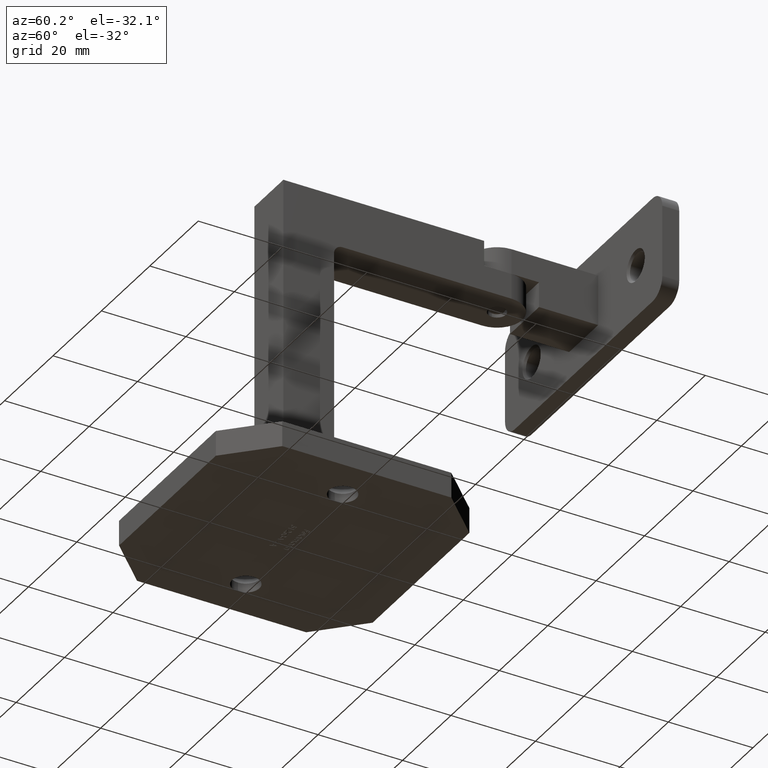
[diagram: clean part render]
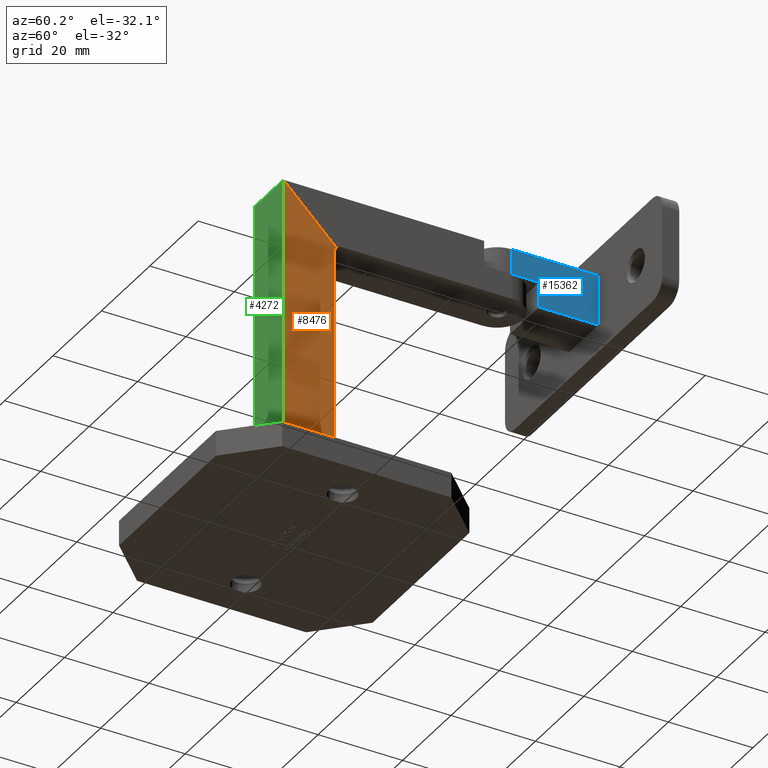
[diagram: same view with three faces highlighted in distinct colors, each labeled with its STEP entity id]
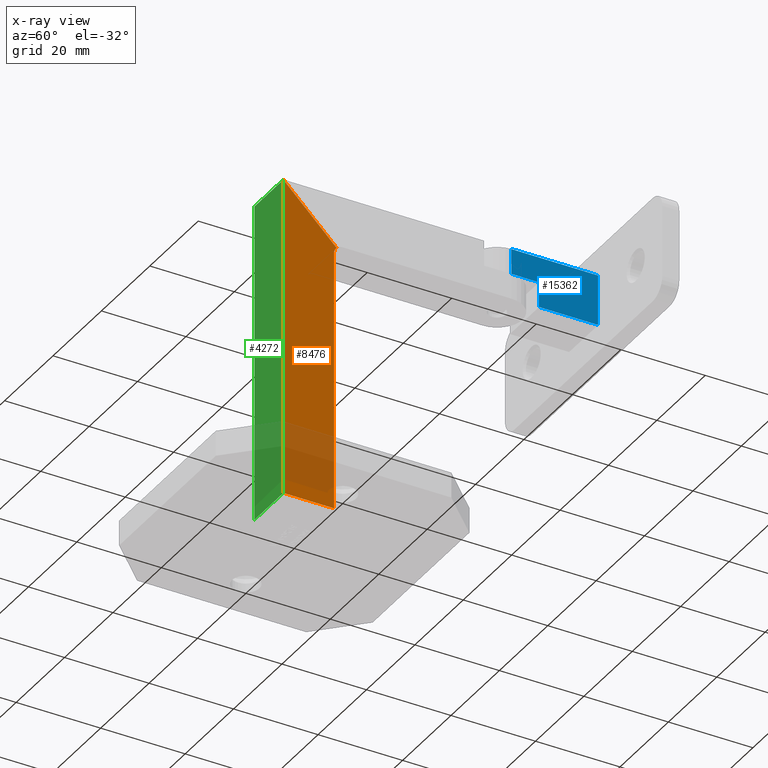
[diagram: x-ray of the same camera — body ghosted, the three highlighted faces saturated]
A machine part, auxiliary view with three faces highlighted in distinct colors.
The next image is the same camera in x-ray (body ghosted, the three faces saturated) — at least one of them is partly hidden behind the body in this view.
Their STEP definitions:

[orange] entity #8476 — the highlighted planar face has unit normal (1, -0, -0).
#1257 = VERTEX_POINT ( 'NONE', #10997 ) ;
#1710 = ORIENTED_EDGE ( 'NONE', *, *, #15108, .F. ) ;
#2434 = DIRECTION ( 'NONE',  ( -0.000000000000000000, 1.224646799147353207E-16, -1.000000000000000000 ) ) ;
#3550 = ORIENTED_EDGE ( 'NONE', *, *, #5045, .T. ) ;
#3824 = CARTESIAN_POINT ( 'NONE',  ( 6.000000000000002665, 6.585786437626897083, 66.41421356237307805 ) ) ;
#4599 = VECTOR ( 'NONE', #2434, 1000.000000000000000 ) ;
#5045 = EDGE_CURVE ( 'NONE', #5939, #23233, #12005, .T. ) ;
#5328 = PLANE ( 'NONE',  #16536 ) ;
#5518 = CARTESIAN_POINT ( 'NONE',  ( 6.000000000000002665, 7.999999999999992895, 64.99999999999997158 ) ) ;
#5748 = VECTOR ( 'NONE', #21355, 1000.000000000000000 ) ;
#5928 = CARTESIAN_POINT ( 'NONE',  ( 6.000000000000002665, 5.999999999999988454, 89.97056274847714974 ) ) ;
#5939 = VERTEX_POINT ( 'NONE', #11869 ) ;
#6292 = DIRECTION ( 'NONE',  ( -1.022195611122249425E-16, -0.7071067811865475727, 0.7071067811865474617 ) ) ;
#7299 = EDGE_LOOP ( 'NONE', ( #3550, #20606, #1710, #18163, #17530 ) ) ;
#7572 = DIRECTION ( 'NONE',  ( 1.445602896647339410E-16, 1.000000000000000000, -0.000000000000000000 ) ) ;
#8476 = ADVANCED_FACE ( 'NONE', ( #9900 ), #5328, .T. ) ;
#8501 = EDGE_CURVE ( 'NONE', #23233, #1257, #17269, .T. ) ;
#8607 = VERTEX_POINT ( 'NONE', #3824 ) ;
#9121 = DIRECTION ( 'NONE',  ( -1.000000000000000000, 1.445602896647339410E-16, 1.770352960217306030E-32 ) ) ;
#9860 = CARTESIAN_POINT ( 'NONE',  ( 6.000000000000002665, 5.999999999999992006, 64.99999999999997158 ) ) ;
#9900 = FACE_OUTER_BOUND ( 'NONE', #7299, .T. ) ;
#10786 = DIRECTION ( 'NONE',  ( 0.000000000000000000, 1.000000000000000000, -1.387778780781445676E-14 ) ) ;
#10947 = CARTESIAN_POINT ( 'NONE',  ( 6.000000000000000888, -6.000000000000000888, 3.070000000000003393 ) ) ;
#10997 = CARTESIAN_POINT ( 'NONE',  ( 6.000000000000002665, 5.999999999999999112, 3.070000000000003393 ) ) ;
#11869 = CARTESIAN_POINT ( 'NONE',  ( 6.000000000000000888, -6.000000000000009770, 78.99999999999998579 ) ) ;
#12005 = LINE ( 'NONE', #23301, #5748 ) ;
#12656 = CIRCLE ( 'NONE', #20019, 2.000000000000000000 ) ;
#14474 = DIRECTION ( 'NONE',  ( 1.445602896647339410E-16, 1.000000000000000000, 0.000000000000000000 ) ) ;
#14721 = CARTESIAN_POINT ( 'NONE',  ( 6.000000000000002665, 6.000000000000000000, 3.070000000000000284 ) ) ;
#15027 = LINE ( 'NONE', #15297, #18747 ) ;
#15108 = EDGE_CURVE ( 'NONE', #19631, #1257, #23461, .T. ) ;
#15297 = CARTESIAN_POINT ( 'NONE',  ( 6.000000000000000888, -5.485281374238592633, 78.48528137423856776 ) ) ;
#16155 = DIRECTION ( 'NONE',  ( 1.000000000000000000, -1.445602896647339410E-16, -1.770352960217306030E-32 ) ) ;
#16536 = AXIS2_PLACEMENT_3D ( 'NONE', #18082, #16155, #14474 ) ;
#17269 = LINE ( 'NONE', #14721, #21535 ) ;
#17530 = ORIENTED_EDGE ( 'NONE', *, *, #19178, .T. ) ;
#18082 = CARTESIAN_POINT ( 'NONE',  ( 6.000000000000002665, 5.999999999999988454, 89.97056274847714974 ) ) ;
#18163 = ORIENTED_EDGE ( 'NONE', *, *, #23147, .T. ) ;
#18747 = VECTOR ( 'NONE', #6292, 1000.000000000000000 ) ;
#19178 = EDGE_CURVE ( 'NONE', #8607, #5939, #15027, .T. ) ;
#19631 = VERTEX_POINT ( 'NONE', #9860 ) ;
#20019 = AXIS2_PLACEMENT_3D ( 'NONE', #5518, #9121, #10786 ) ;
#20606 = ORIENTED_EDGE ( 'NONE', *, *, #8501, .T. ) ;
#21355 = DIRECTION ( 'NONE',  ( -0.000000000000000000, 1.224646799147353207E-16, -1.000000000000000000 ) ) ;
#21535 = VECTOR ( 'NONE', #7572, 1000.000000000000000 ) ;
#23147 = EDGE_CURVE ( 'NONE', #19631, #8607, #12656, .T. ) ;
#23233 = VERTEX_POINT ( 'NONE', #10947 ) ;
#23301 = CARTESIAN_POINT ( 'NONE',  ( 6.000000000000000888, -6.000000000000011546, 89.97056274847714974 ) ) ;
#23461 = LINE ( 'NONE', #5928, #4599 ) ;

[blue] entity #15362 — the highlighted planar face has unit normal (-1, -0, 0).
#587 = VERTEX_POINT ( 'NONE', #23110 ) ;
#668 = DIRECTION ( 'NONE',  ( -1.636531581110195409E-16, 1.000000000000000000, -0.000000000000000000 ) ) ;
#948 = CARTESIAN_POINT ( 'NONE',  ( 6.000000000000000888, -7.249999999999999112, 6.000000000000000000 ) ) ;
#959 = ORIENTED_EDGE ( 'NONE', *, *, #14714, .F. ) ;
#1143 = DIRECTION ( 'NONE',  ( 1.636531581110195163E-16, -1.000000000000000000, 0.000000000000000000 ) ) ;
#2359 = ORIENTED_EDGE ( 'NONE', *, *, #10609, .T. ) ;
#2911 = DIRECTION ( 'NONE',  ( -0.000000000000000000, -1.000000000000000000, -0.000000000000000000 ) ) ;
#3260 = CARTESIAN_POINT ( 'NONE',  ( 5.999999999999997335, 13.24999999999999822, -6.000000000000000000 ) ) ;
#3467 = LINE ( 'NONE', #15827, #13698 ) ;
#4663 = LINE ( 'NONE', #18832, #21782 ) ;
#5395 = EDGE_CURVE ( 'NONE', #6126, #15164, #3467, .T. ) ;
#5525 = VERTEX_POINT ( 'NONE', #3260 ) ;
#6126 = VERTEX_POINT ( 'NONE', #948 ) ;
#6534 = DIRECTION ( 'NONE',  ( -1.000000000000000000, -1.636531581110195163E-16, 0.000000000000000000 ) ) ;
#6619 = CARTESIAN_POINT ( 'NONE',  ( 5.999999999999997335, 13.24999999999999822, 6.000000000000000000 ) ) ;
#6735 = DIRECTION ( 'NONE',  ( -0.000000000000000000, -0.000000000000000000, -1.000000000000000000 ) ) ;
#6969 = LINE ( 'NONE', #8466, #20372 ) ;
#7492 = FACE_OUTER_BOUND ( 'NONE', #11435, .T. ) ;
#8466 = CARTESIAN_POINT ( 'NONE',  ( 5.999999999999997335, 13.24999999999999822, 6.000000000000000000 ) ) ;
#9975 = ORIENTED_EDGE ( 'NONE', *, *, #5395, .T. ) ;
#10005 = CARTESIAN_POINT ( 'NONE',  ( 6.000000000000001776, -7.250000000000000000, 0.000000000000000000 ) ) ;
#10609 = EDGE_CURVE ( 'NONE', #587, #5525, #4663, .T. ) ;
#11014 = VECTOR ( 'NONE', #13961, 1000.000000000000000 ) ;
#11192 = ORIENTED_EDGE ( 'NONE', *, *, #12652, .F. ) ;
#11435 = EDGE_LOOP ( 'NONE', ( #15731, #9975, #959, #11954, #2359, #11192 ) ) ;
#11954 = ORIENTED_EDGE ( 'NONE', *, *, #18139, .T. ) ;
#12652 = EDGE_CURVE ( 'NONE', #16535, #5525, #6969, .T. ) ;
#12742 = LINE ( 'NONE', #23417, #21833 ) ;
#13543 = LINE ( 'NONE', #14119, #11014 ) ;
#13698 = VECTOR ( 'NONE', #17434, 1000.000000000000000 ) ;
#13812 = CARTESIAN_POINT ( 'NONE',  ( 6.000000000000001776, -13.25000000000000178, 0.000000000000000000 ) ) ;
#13961 = DIRECTION ( 'NONE',  ( -1.636531581110195409E-16, 1.000000000000000000, -0.000000000000000000 ) ) ;
#14119 = CARTESIAN_POINT ( 'NONE',  ( 5.999999999999997335, 13.24999999999999822, 6.000000000000000000 ) ) ;
#14714 = EDGE_CURVE ( 'NONE', #19811, #15164, #20038, .T. ) ;
#14755 = AXIS2_PLACEMENT_3D ( 'NONE', #6619, #6534, #1143 ) ;
#15164 = VERTEX_POINT ( 'NONE', #10005 ) ;
#15362 = ADVANCED_FACE ( 'NONE', ( #7492 ), #21195, .F. ) ;
#15731 = ORIENTED_EDGE ( 'NONE', *, *, #21670, .F. ) ;
#15827 = CARTESIAN_POINT ( 'NONE',  ( 6.000000000000000888, -7.249999999999999112, 6.000000000000000000 ) ) ;
#16535 = VERTEX_POINT ( 'NONE', #18700 ) ;
#17434 = DIRECTION ( 'NONE',  ( 0.000000000000000000, 0.000000000000000000, -1.000000000000000000 ) ) ;
#18139 = EDGE_CURVE ( 'NONE', #19811, #587, #12742, .T. ) ;
#18700 = CARTESIAN_POINT ( 'NONE',  ( 5.999999999999997335, 13.24999999999999822, 6.000000000000000000 ) ) ;
#18832 = CARTESIAN_POINT ( 'NONE',  ( 5.999999999999997335, 13.24999999999999822, -6.000000000000000000 ) ) ;
#19682 = DIRECTION ( 'NONE',  ( -0.000000000000000000, -0.000000000000000000, -1.000000000000000000 ) ) ;
#19811 = VERTEX_POINT ( 'NONE', #19896 ) ;
#19896 = CARTESIAN_POINT ( 'NONE',  ( 6.000000000000001776, -0.7500000000000006661, 0.000000000000000000 ) ) ;
#20038 = LINE ( 'NONE', #13812, #22869 ) ;
#20372 = VECTOR ( 'NONE', #19682, 1000.000000000000000 ) ;
#21195 = PLANE ( 'NONE',  #14755 ) ;
#21670 = EDGE_CURVE ( 'NONE', #6126, #16535, #13543, .T. ) ;
#21782 = VECTOR ( 'NONE', #668, 1000.000000000000000 ) ;
#21833 = VECTOR ( 'NONE', #6735, 1000.000000000000000 ) ;
#22869 = VECTOR ( 'NONE', #2911, 1000.000000000000000 ) ;
#23110 = CARTESIAN_POINT ( 'NONE',  ( 6.000000000000001776, -0.7500000000000006661, -6.000000000000000000 ) ) ;
#23417 = CARTESIAN_POINT ( 'NONE',  ( 6.000000000000001776, -0.7500000000000006661, 0.000000000000000000 ) ) ;

[green] entity #4272 — the highlighted planar face has unit normal (0, -1, -0).
#1566 = PLANE ( 'NONE',  #13592 ) ;
#3637 = CARTESIAN_POINT ( 'NONE',  ( -5.999999999999999112, -6.000000000000011546, 89.97056274847714974 ) ) ;
#3727 = ORIENTED_EDGE ( 'NONE', *, *, #18940, .T. ) ;
#4272 = ADVANCED_FACE ( 'NONE', ( #4451 ), #1566, .T. ) ;
#4451 = FACE_OUTER_BOUND ( 'NONE', #8329, .T. ) ;
#5045 = EDGE_CURVE ( 'NONE', #5939, #23233, #12005, .T. ) ;
#5748 = VECTOR ( 'NONE', #21355, 1000.000000000000000 ) ;
#5939 = VERTEX_POINT ( 'NONE', #11869 ) ;
#6299 = EDGE_CURVE ( 'NONE', #21655, #23233, #7666, .T. ) ;
#6706 = VECTOR ( 'NONE', #7333, 1000.000000000000000 ) ;
#7333 = DIRECTION ( 'NONE',  ( -1.000000000000000000, 0.000000000000000000, 0.000000000000000000 ) ) ;
#7531 = DIRECTION ( 'NONE',  ( 1.000000000000000000, -0.000000000000000000, -0.000000000000000000 ) ) ;
#7666 = LINE ( 'NONE', #18359, #11350 ) ;
#8329 = EDGE_LOOP ( 'NONE', ( #3727, #10136, #16257, #11696 ) ) ;
#10136 = ORIENTED_EDGE ( 'NONE', *, *, #6299, .T. ) ;
#10947 = CARTESIAN_POINT ( 'NONE',  ( 6.000000000000000888, -6.000000000000000888, 3.070000000000003393 ) ) ;
#11350 = VECTOR ( 'NONE', #7531, 1000.000000000000000 ) ;
#11696 = ORIENTED_EDGE ( 'NONE', *, *, #21338, .T. ) ;
#11869 = CARTESIAN_POINT ( 'NONE',  ( 6.000000000000000888, -6.000000000000009770, 78.99999999999998579 ) ) ;
#12005 = LINE ( 'NONE', #23301, #5748 ) ;
#13592 = AXIS2_PLACEMENT_3D ( 'NONE', #14264, #20335, #16594 ) ;
#14038 = CARTESIAN_POINT ( 'NONE',  ( -5.999999999999999112, -6.000000000000000888, 3.070000000000003393 ) ) ;
#14099 = LINE ( 'NONE', #16629, #6706 ) ;
#14264 = CARTESIAN_POINT ( 'NONE',  ( 6.000000000000000888, -6.000000000000011546, 89.97056274847714974 ) ) ;
#14613 = CARTESIAN_POINT ( 'NONE',  ( -5.999999999999999112, -6.000000000000011546, 78.99999999999997158 ) ) ;
#15012 = VERTEX_POINT ( 'NONE', #14613 ) ;
#16257 = ORIENTED_EDGE ( 'NONE', *, *, #5045, .F. ) ;
#16594 = DIRECTION ( 'NONE',  ( 0.000000000000000000, 1.224646799147353207E-16, -1.000000000000000000 ) ) ;
#16629 = CARTESIAN_POINT ( 'NONE',  ( 6.000000000000000888, -6.000000000000009770, 78.99999999999998579 ) ) ;
#17037 = VECTOR ( 'NONE', #20334, 1000.000000000000000 ) ;
#18359 = CARTESIAN_POINT ( 'NONE',  ( 6.000000000000000888, -6.000000000000000888, 3.070000000000003393 ) ) ;
#18940 = EDGE_CURVE ( 'NONE', #15012, #21655, #23322, .T. ) ;
#20334 = DIRECTION ( 'NONE',  ( -0.000000000000000000, 1.224646799147353207E-16, -1.000000000000000000 ) ) ;
#20335 = DIRECTION ( 'NONE',  ( 0.000000000000000000, -1.000000000000000000, -1.224646799147353207E-16 ) ) ;
#21338 = EDGE_CURVE ( 'NONE', #5939, #15012, #14099, .T. ) ;
#21355 = DIRECTION ( 'NONE',  ( -0.000000000000000000, 1.224646799147353207E-16, -1.000000000000000000 ) ) ;
#21655 = VERTEX_POINT ( 'NONE', #14038 ) ;
#23233 = VERTEX_POINT ( 'NONE', #10947 ) ;
#23301 = CARTESIAN_POINT ( 'NONE',  ( 6.000000000000000888, -6.000000000000011546, 89.97056274847714974 ) ) ;
#23322 = LINE ( 'NONE', #3637, #17037 ) ;